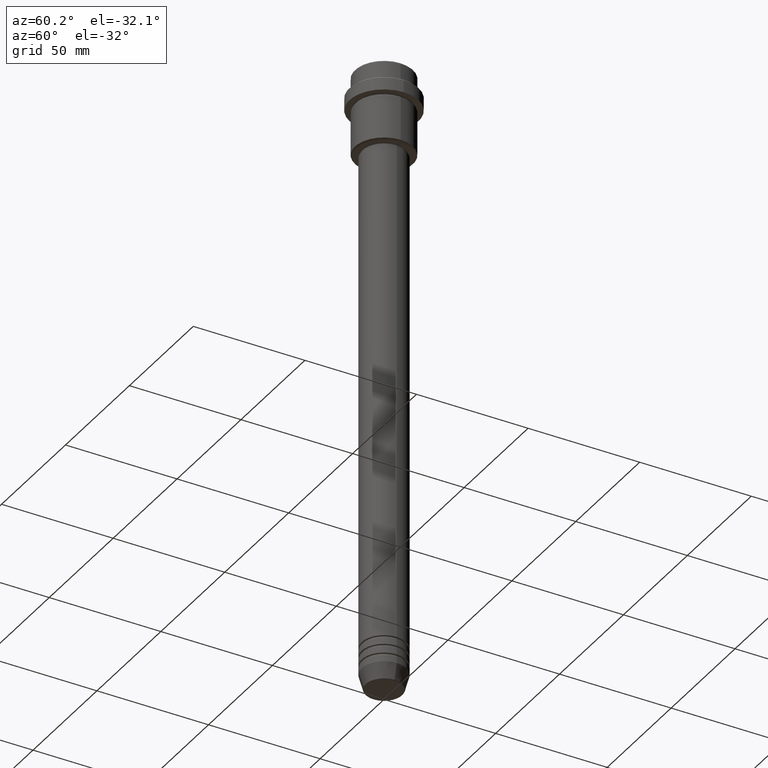
[diagram: clean part render]
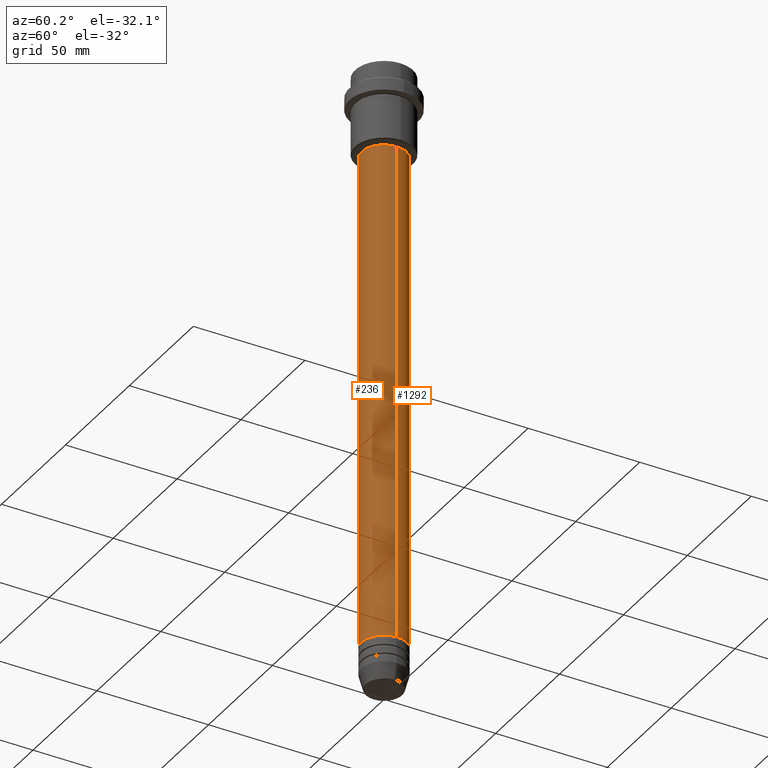
[diagram: same view with one multi-face feature highlighted, each face labeled with its STEP entity id]
A machine part, auxiliary view. The highlighted faces form ONE feature: a constant-radius fillet chain: 2 tangent blend faces with common blend radius 10 mm. The faces share edges in the B-rep.
Their STEP definitions:
[1] entity #236 (Cylinder):
#44 = CIRCLE ( 'NONE', #131, 10.00000000000000178 ) ;
#73 = DIRECTION ( 'NONE',  ( -0.000000000000000000, -0.000000000000000000, 1.000000000000000000 ) ) ;
#88 = VERTEX_POINT ( 'NONE', #491 ) ;
#103 = CIRCLE ( 'NONE', #371, 10.00000000000000000 ) ;
#131 = AXIS2_PLACEMENT_3D ( 'NONE', #387, #406, #1254 ) ;
#142 = EDGE_CURVE ( 'NONE', #88, #752, #103, .T. ) ;
#202 = CARTESIAN_POINT ( 'NONE',  ( 0.000000000000000000, 0.000000000000000000, 0.000000000000000000 ) ) ;
#225 = ORIENTED_EDGE ( 'NONE', *, *, #539, .T. ) ;
#226 = LINE ( 'NONE', #870, #1400 ) ;
#234 = VERTEX_POINT ( 'NONE', #837 ) ;
#236 = ADVANCED_FACE ( 'NONE', ( #646 ), #411, .T. ) ;
#248 = LINE ( 'NONE', #819, #1148 ) ;
#275 = EDGE_LOOP ( 'NONE', ( #1252, #336, #225, #331 ) ) ;
#324 = DIRECTION ( 'NONE',  ( -0.000000000000000000, -0.000000000000000000, 1.000000000000000000 ) ) ;
#331 = ORIENTED_EDGE ( 'NONE', *, *, #1190, .F. ) ;
#336 = ORIENTED_EDGE ( 'NONE', *, *, #142, .T. ) ;
#371 = AXIS2_PLACEMENT_3D ( 'NONE', #1359, #589, #384 ) ;
#384 = DIRECTION ( 'NONE',  ( 1.000000000000000000, 0.000000000000000000, 0.000000000000000000 ) ) ;
#387 = CARTESIAN_POINT ( 'NONE',  ( 0.000000000000000000, 0.000000000000000000, -37.00000000000008527 ) ) ;
#406 = DIRECTION ( 'NONE',  ( -0.000000000000000000, -0.000000000000000000, 1.000000000000000000 ) ) ;
#411 = CYLINDRICAL_SURFACE ( 'NONE', #1146, 10.00000000000000178 ) ;
#491 = CARTESIAN_POINT ( 'NONE',  ( -10.00000000000000000, 1.224646799147353256E-15, -261.9999999999998863 ) ) ;
#539 = EDGE_CURVE ( 'NONE', #752, #1164, #248, .T. ) ;
#589 = DIRECTION ( 'NONE',  ( -0.000000000000000000, -0.000000000000000000, 1.000000000000000000 ) ) ;
#646 = FACE_OUTER_BOUND ( 'NONE', #275, .T. ) ;
#726 = CARTESIAN_POINT ( 'NONE',  ( 10.00000000000000000, 0.000000000000000000, -261.9999999999998863 ) ) ;
#740 = DIRECTION ( 'NONE',  ( 1.000000000000000000, 0.000000000000000000, 0.000000000000000000 ) ) ;
#752 = VERTEX_POINT ( 'NONE', #726 ) ;
#819 = CARTESIAN_POINT ( 'NONE',  ( 10.00000000000000178, 0.000000000000000000, 0.000000000000000000 ) ) ;
#837 = CARTESIAN_POINT ( 'NONE',  ( -10.00000000000000178, 1.224646799147353454E-15, -37.00000000000008527 ) ) ;
#870 = CARTESIAN_POINT ( 'NONE',  ( -10.00000000000000178, 1.224646799147353454E-15, 0.000000000000000000 ) ) ;
#902 = DIRECTION ( 'NONE',  ( -0.000000000000000000, -0.000000000000000000, 1.000000000000000000 ) ) ;
#1070 = CARTESIAN_POINT ( 'NONE',  ( 10.00000000000000178, 0.000000000000000000, -37.00000000000008527 ) ) ;
#1146 = AXIS2_PLACEMENT_3D ( 'NONE', #202, #73, #740 ) ;
#1148 = VECTOR ( 'NONE', #902, 1000.000000000000000 ) ;
#1164 = VERTEX_POINT ( 'NONE', #1070 ) ;
#1190 = EDGE_CURVE ( 'NONE', #234, #1164, #44, .T. ) ;
#1252 = ORIENTED_EDGE ( 'NONE', *, *, #1276, .F. ) ;
#1254 = DIRECTION ( 'NONE',  ( 1.000000000000000000, 0.000000000000000000, 0.000000000000000000 ) ) ;
#1276 = EDGE_CURVE ( 'NONE', #88, #234, #226, .T. ) ;
#1359 = CARTESIAN_POINT ( 'NONE',  ( 0.000000000000000000, 0.000000000000000000, -261.9999999999998863 ) ) ;
#1400 = VECTOR ( 'NONE', #324, 1000.000000000000000 ) ;
[2] entity #1292 (Cylinder):
#88 = VERTEX_POINT ( 'NONE', #491 ) ;
#196 = DIRECTION ( 'NONE',  ( -0.000000000000000000, -0.000000000000000000, 1.000000000000000000 ) ) ;
#226 = LINE ( 'NONE', #870, #1400 ) ;
#234 = VERTEX_POINT ( 'NONE', #837 ) ;
#248 = LINE ( 'NONE', #819, #1148 ) ;
#294 = DIRECTION ( 'NONE',  ( 1.000000000000000000, 0.000000000000000000, 0.000000000000000000 ) ) ;
#324 = DIRECTION ( 'NONE',  ( -0.000000000000000000, -0.000000000000000000, 1.000000000000000000 ) ) ;
#349 = AXIS2_PLACEMENT_3D ( 'NONE', #1187, #196, #549 ) ;
#378 = ORIENTED_EDGE ( 'NONE', *, *, #489, .F. ) ;
#428 = CIRCLE ( 'NONE', #521, 10.00000000000000178 ) ;
#489 = EDGE_CURVE ( 'NONE', #1164, #234, #428, .T. ) ;
#491 = CARTESIAN_POINT ( 'NONE',  ( -10.00000000000000000, 1.224646799147353256E-15, -261.9999999999998863 ) ) ;
#521 = AXIS2_PLACEMENT_3D ( 'NONE', #603, #1022, #811 ) ;
#523 = CIRCLE ( 'NONE', #922, 10.00000000000000000 ) ;
#539 = EDGE_CURVE ( 'NONE', #752, #1164, #248, .T. ) ;
#543 = CARTESIAN_POINT ( 'NONE',  ( 0.000000000000000000, 0.000000000000000000, -261.9999999999998863 ) ) ;
#549 = DIRECTION ( 'NONE',  ( 1.000000000000000000, 0.000000000000000000, 0.000000000000000000 ) ) ;
#603 = CARTESIAN_POINT ( 'NONE',  ( 0.000000000000000000, 0.000000000000000000, -37.00000000000008527 ) ) ;
#635 = EDGE_CURVE ( 'NONE', #752, #88, #523, .T. ) ;
#726 = CARTESIAN_POINT ( 'NONE',  ( 10.00000000000000000, 0.000000000000000000, -261.9999999999998863 ) ) ;
#752 = VERTEX_POINT ( 'NONE', #726 ) ;
#769 = FACE_OUTER_BOUND ( 'NONE', #927, .T. ) ;
#811 = DIRECTION ( 'NONE',  ( 1.000000000000000000, 0.000000000000000000, 0.000000000000000000 ) ) ;
#819 = CARTESIAN_POINT ( 'NONE',  ( 10.00000000000000178, 0.000000000000000000, 0.000000000000000000 ) ) ;
#837 = CARTESIAN_POINT ( 'NONE',  ( -10.00000000000000178, 1.224646799147353454E-15, -37.00000000000008527 ) ) ;
#870 = CARTESIAN_POINT ( 'NONE',  ( -10.00000000000000178, 1.224646799147353454E-15, 0.000000000000000000 ) ) ;
#902 = DIRECTION ( 'NONE',  ( -0.000000000000000000, -0.000000000000000000, 1.000000000000000000 ) ) ;
#922 = AXIS2_PLACEMENT_3D ( 'NONE', #543, #1066, #294 ) ;
#927 = EDGE_LOOP ( 'NONE', ( #1390, #1310, #378, #1052 ) ) ;
#1022 = DIRECTION ( 'NONE',  ( -0.000000000000000000, -0.000000000000000000, 1.000000000000000000 ) ) ;
#1052 = ORIENTED_EDGE ( 'NONE', *, *, #539, .F. ) ;
#1066 = DIRECTION ( 'NONE',  ( -0.000000000000000000, -0.000000000000000000, 1.000000000000000000 ) ) ;
#1070 = CARTESIAN_POINT ( 'NONE',  ( 10.00000000000000178, 0.000000000000000000, -37.00000000000008527 ) ) ;
#1148 = VECTOR ( 'NONE', #902, 1000.000000000000000 ) ;
#1164 = VERTEX_POINT ( 'NONE', #1070 ) ;
#1187 = CARTESIAN_POINT ( 'NONE',  ( 0.000000000000000000, 0.000000000000000000, 0.000000000000000000 ) ) ;
#1200 = CYLINDRICAL_SURFACE ( 'NONE', #349, 10.00000000000000178 ) ;
#1276 = EDGE_CURVE ( 'NONE', #88, #234, #226, .T. ) ;
#1292 = ADVANCED_FACE ( 'NONE', ( #769 ), #1200, .T. ) ;
#1310 = ORIENTED_EDGE ( 'NONE', *, *, #1276, .T. ) ;
#1390 = ORIENTED_EDGE ( 'NONE', *, *, #635, .T. ) ;
#1400 = VECTOR ( 'NONE', #324, 1000.000000000000000 ) ;